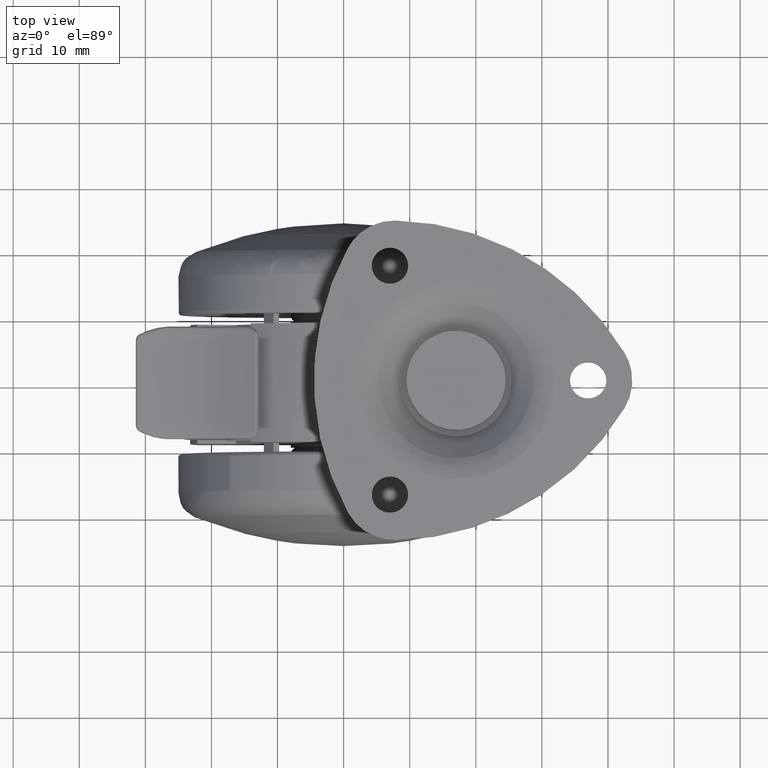
[diagram: clean part render]
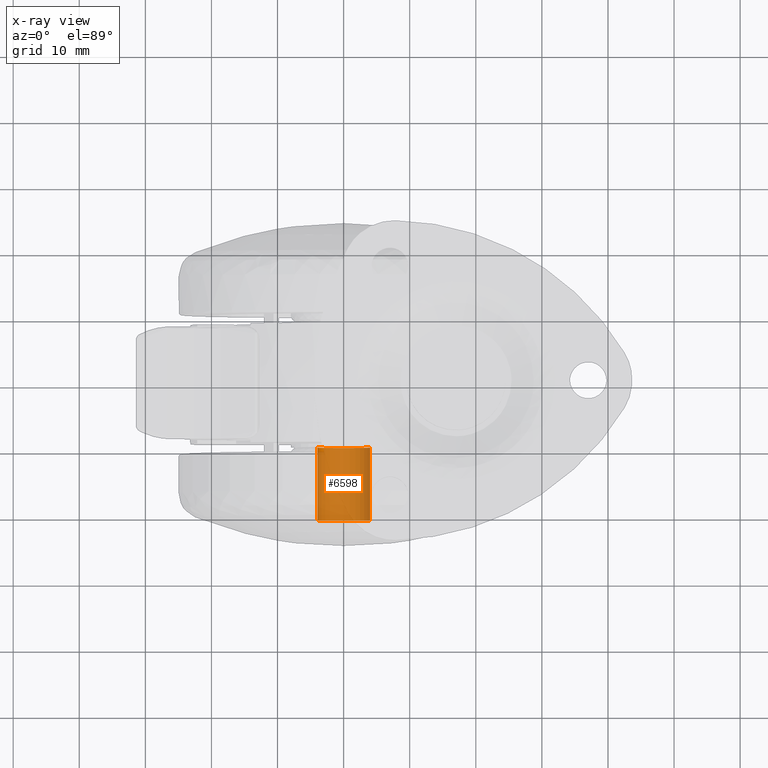
[diagram: x-ray — body ghosted, one internal face saturated and labeled with its STEP entity id]
A machine part, top view, then the same camera in x-ray: the body is ghosted and one INTERNAL B-rep face — a face not visible from any outside direction — is saturated and labeled: STEP entity #6598.
In plain terms, the highlighted face is a freeform B-spline surface patch.
Its self-contained STEP definition (entity closure, byte-faithful):
#6496=CARTESIAN_POINT('',(-3.972038105454666,-9.225000000000000,0.472136938627034));
#6497=CARTESIAN_POINT('',(-3.985550461794422,-9.225000000000000,0.358458914551911));
#6498=CARTESIAN_POINT('',(-3.992539193687467,-9.224999999999998,0.244194158139428));
#6499=CARTESIAN_POINT('',(-4.236733351826894,-9.224999999999998,-3.748345035548039));
#6500=CARTESIAN_POINT('',(-0.244194158139428,-9.224999999999998,-3.992539193687467));
#6501=CARTESIAN_POINT('',(3.748345035548039,-9.224999999999998,-4.236733351826894));
#6502=CARTESIAN_POINT('',(3.992539193687467,-9.224999999999998,-0.244194158139428));
#6503=CARTESIAN_POINT('',(-3.972038105454666,-20.781875000000007,0.472136938627034));
#6504=CARTESIAN_POINT('',(-3.985550461794422,-20.781875000000003,0.358458914551911));
#6505=CARTESIAN_POINT('',(-3.992539193687467,-20.781874999999999,0.244194158139428));
#6506=CARTESIAN_POINT('',(-4.236733351826894,-20.781875000000010,-3.748345035548039));
#6507=CARTESIAN_POINT('',(-0.244194158139428,-20.781874999999999,-3.992539193687467));
#6508=CARTESIAN_POINT('',(3.748345035548039,-20.781875000000010,-4.236733351826894));
#6509=CARTESIAN_POINT('',(3.992539193687467,-20.781874999999999,-0.244194158139428));
#6517=(BOUNDED_SURFACE()B_SPLINE_SURFACE(2,1,((#6496,#6503),(#6497,#6504),(#6498,#6505),(#6499,#6506),(#6500,#6507),(#6501,#6508),(#6502,#6509)),.UNSPECIFIED.,.F.,.F.,.U.)B_SPLINE_SURFACE_WITH_KNOTS((3,2,2,3),(2,2),(0.0,0.265096679918781,6.892513677888299,13.519930675857820),(0.0,11.556875000000010),.UNSPECIFIED.)GEOMETRIC_REPRESENTATION_ITEM()RATIONAL_B_SPLINE_SURFACE(((0.977505800795127,0.977505800795127),(0.988284271247462,0.988284271247462),(1.0,1.0),(0.707106781186548,0.707106781186548),(1.0,1.0),(0.707106781186548,0.707106781186548),(1.0,1.0)))REPRESENTATION_ITEM('')SURFACE());
#6518=CARTESIAN_POINT('',(-3.972038105444752,-9.500000000000000,0.472136938710435));
#6519=VERTEX_POINT('',#6518);
#6520=CARTESIAN_POINT('',(0.0,-9.500000000000000,-4.0));
#6521=VERTEX_POINT('',#6520);
#6522=CARTESIAN_POINT('',(-3.972038105444752,-9.500000000000000,0.472136938710435));
#6523=CARTESIAN_POINT('',(-4.000000000000000,-9.500000000000000,0.236896478691923));
#6524=CARTESIAN_POINT('',(-4.0,-9.500000000000000,0.0));
#6525=CARTESIAN_POINT('',(-4.000000000000000,-9.500000000000000,-4.000000000000000));
#6526=CARTESIAN_POINT('',(0.0,-9.500000000000000,-4.0));
#6534=(BOUNDED_CURVE()B_SPLINE_CURVE(2,(#6522,#6523,#6524,#6525,#6526),.UNSPECIFIED.,.F.,.U.)B_SPLINE_CURVE_WITH_KNOTS((3,2,3),(0.229562473508547,0.250000000000000,0.500000000000000),.UNSPECIFIED.)CURVE()GEOMETRIC_REPRESENTATION_ITEM()RATIONAL_B_SPLINE_CURVE((0.956026754173975,0.976055948325333,1.0,0.707106781186548,1.0))REPRESENTATION_ITEM(''));
#6535=EDGE_CURVE('',#6519,#6521,#6534,.T.);
#6536=ORIENTED_EDGE('',*,*,#6535,.F.);
#6537=CARTESIAN_POINT('',(-3.972038105444752,-20.500000000000000,0.472136938710435));
#6538=VERTEX_POINT('',#6537);
#6539=CARTESIAN_POINT('',(-3.972038105444752,-9.500000000000000,0.472136938710435));
#6540=CARTESIAN_POINT('',(-3.972038105444752,-20.500000000000000,0.472136938710435));
#6541=QUASI_UNIFORM_CURVE('',1,(#6539,#6540),.UNSPECIFIED.,.F.,.U.);
#6542=EDGE_CURVE('',#6519,#6538,#6541,.T.);
#6543=ORIENTED_EDGE('',*,*,#6542,.T.);
#6544=CARTESIAN_POINT('',(0.0,-20.500000000000000,-4.0));
#6545=VERTEX_POINT('',#6544);
#6546=CARTESIAN_POINT('',(-3.972038105444752,-20.500000000000000,0.472136938710435));
#6547=CARTESIAN_POINT('',(-4.0,-20.500000000000000,0.236896478691923));
#6548=CARTESIAN_POINT('',(-4.0,-20.500000000000000,0.0));
#6549=CARTESIAN_POINT('',(-4.000000000000000,-20.500000000000007,-4.000000000000000));
#6550=CARTESIAN_POINT('',(0.0,-20.500000000000000,-4.0));
#6558=(BOUNDED_CURVE()B_SPLINE_CURVE(2,(#6546,#6547,#6548,#6549,#6550),.UNSPECIFIED.,.F.,.U.)B_SPLINE_CURVE_WITH_KNOTS((3,2,3),(0.229562473508547,0.250000000000000,0.500000000000000),.UNSPECIFIED.)CURVE()GEOMETRIC_REPRESENTATION_ITEM()RATIONAL_B_SPLINE_CURVE((0.956026754173975,0.976055948325333,1.0,0.707106781186548,1.0))REPRESENTATION_ITEM(''));
#6559=EDGE_CURVE('',#6538,#6545,#6558,.T.);
#6560=ORIENTED_EDGE('',*,*,#6559,.T.);
#6561=CARTESIAN_POINT('',(3.992539193682335,-20.500000000000000,-0.244194158223351));
#6562=VERTEX_POINT('',#6561);
#6563=CARTESIAN_POINT('',(0.0,-20.500000000000000,-4.0));
#6564=CARTESIAN_POINT('',(3.762824267464309,-20.500000000000004,-4.000000000000000));
#6565=CARTESIAN_POINT('',(3.992539193682335,-20.500000000000007,-0.244194158223351));
#6573=(BOUNDED_CURVE()B_SPLINE_CURVE(2,(#6563,#6564,#6565),.UNSPECIFIED.,.F.,.U.)B_SPLINE_CURVE_WITH_KNOTS((3,3),(0.500000000000000,0.739332962234715),.UNSPECIFIED.)CURVE()GEOMETRIC_REPRESENTATION_ITEM()RATIONAL_B_SPLINE_CURVE((1.0,0.719603993291663,0.976072041657657))REPRESENTATION_ITEM(''));
#6574=EDGE_CURVE('',#6545,#6562,#6573,.T.);
#6575=ORIENTED_EDGE('',*,*,#6574,.T.);
#6576=CARTESIAN_POINT('',(3.992539193682335,-9.500000000000002,-0.244194158223350));
#6577=VERTEX_POINT('',#6576);
#6578=CARTESIAN_POINT('',(3.992539193682335,-9.500000000000002,-0.244194158223350));
#6579=CARTESIAN_POINT('',(3.992539193682335,-20.500000000000000,-0.244194158223351));
#6580=QUASI_UNIFORM_CURVE('',1,(#6578,#6579),.UNSPECIFIED.,.F.,.U.);
#6581=EDGE_CURVE('',#6577,#6562,#6580,.T.);
#6582=ORIENTED_EDGE('',*,*,#6581,.F.);
#6583=CARTESIAN_POINT('',(0.0,-9.500000000000000,-4.0));
#6584=CARTESIAN_POINT('',(3.762824267464309,-9.500000000000000,-4.000000000000000));
#6585=CARTESIAN_POINT('',(3.992539193682335,-9.500000000000002,-0.244194158223350));
#6593=(BOUNDED_CURVE()B_SPLINE_CURVE(2,(#6583,#6584,#6585),.UNSPECIFIED.,.F.,.U.)B_SPLINE_CURVE_WITH_KNOTS((3,3),(0.500000000000000,0.739332962234715),.UNSPECIFIED.)CURVE()GEOMETRIC_REPRESENTATION_ITEM()RATIONAL_B_SPLINE_CURVE((1.0,0.719603993291663,0.976072041657657))REPRESENTATION_ITEM(''));
#6594=EDGE_CURVE('',#6521,#6577,#6593,.T.);
#6595=ORIENTED_EDGE('',*,*,#6594,.F.);
#6596=EDGE_LOOP('',(#6536,#6543,#6560,#6575,#6582,#6595));
#6597=FACE_OUTER_BOUND('',#6596,.T.);
#6598=ADVANCED_FACE('',(#6597),#6517,.F.);